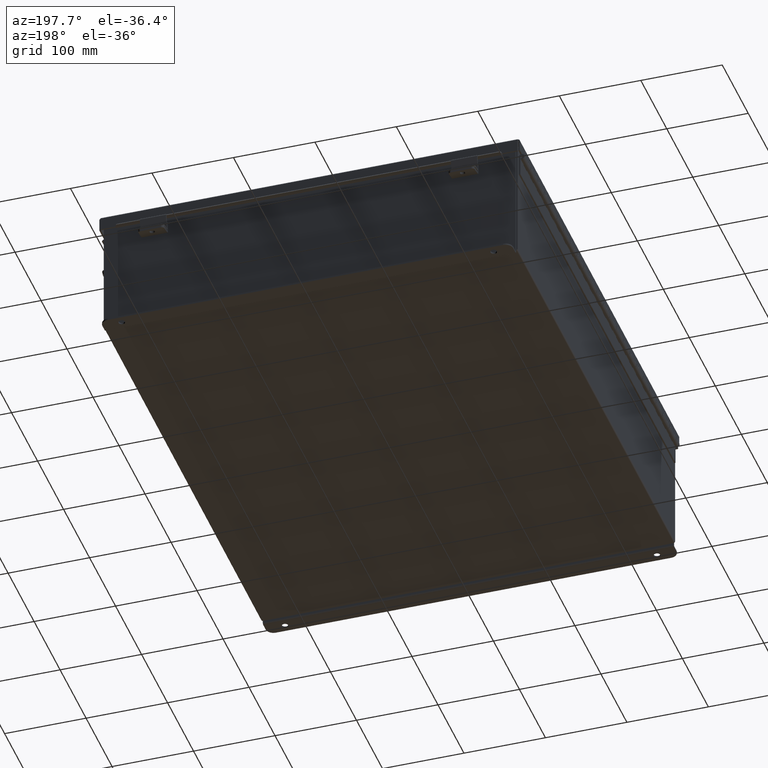
[diagram: clean part render]
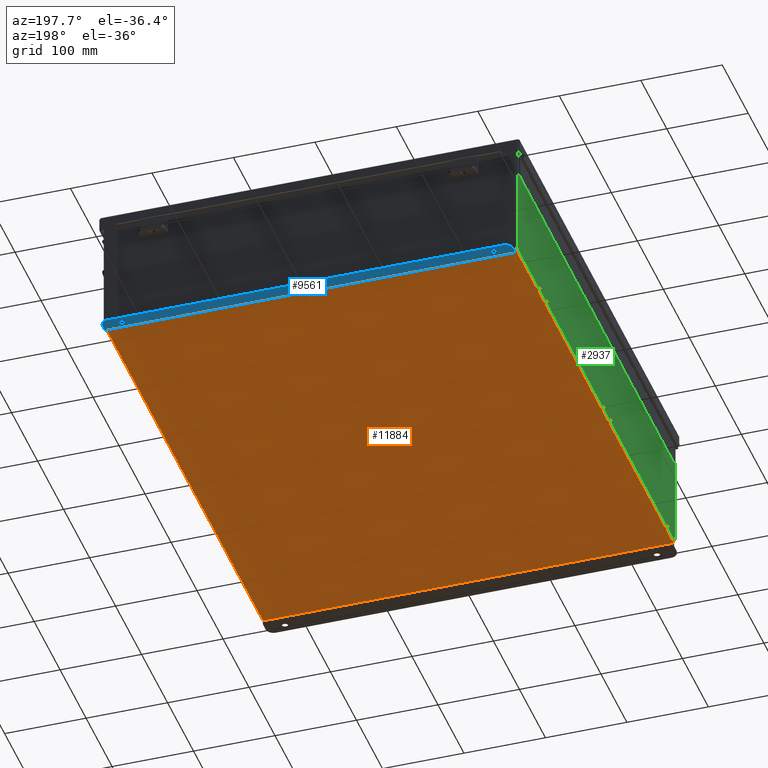
[diagram: same view with three faces highlighted in distinct colors, each labeled with its STEP entity id]
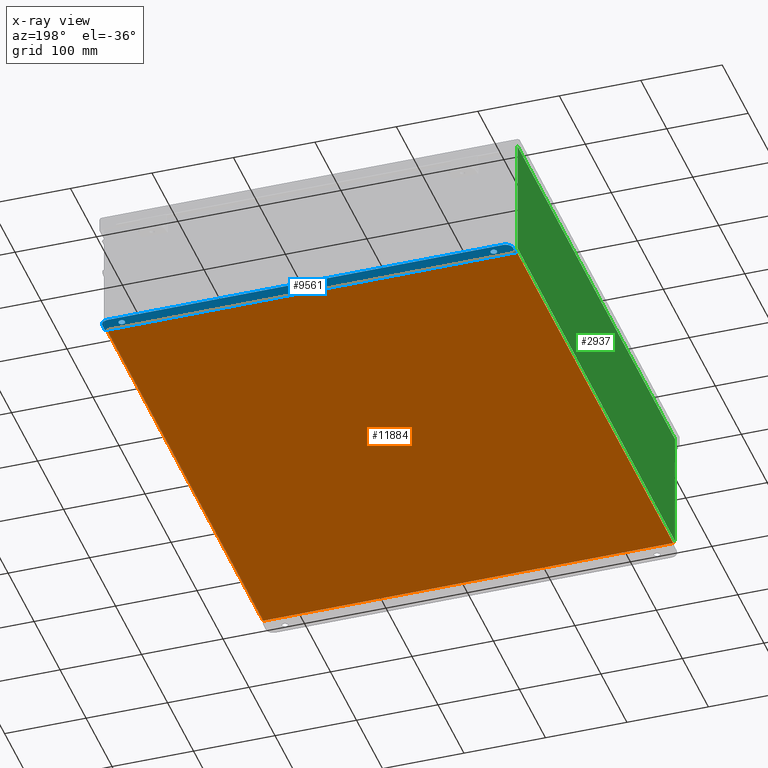
[diagram: x-ray of the same camera — body ghosted, the three highlighted faces saturated]
A machine part, auxiliary view with three faces highlighted in distinct colors.
The next image is the same camera in x-ray (body ghosted, the three faces saturated) — at least one of them is partly hidden behind the body in this view.
Their STEP definitions:

[orange] entity #11884 — the highlighted planar face has unit normal (0, 0, -1).
#275 = VERTEX_POINT ( 'NONE', #11798 ) ;
#281 = DIRECTION ( 'NONE',  ( -1.000000000000000000, -0.0000000000000000000, -0.0000000000000000000 ) ) ;
#1199 = VECTOR ( 'NONE', #281, 39.37007874015748100 ) ;
#1292 = CARTESIAN_POINT ( 'NONE',  ( -9.912300000000000100, 11.92529999999999600, -0.07470000000000000300 ) ) ;
#1330 = EDGE_CURVE ( 'NONE', #275, #4241, #13236, .T. ) ;
#1869 = ORIENTED_EDGE ( 'NONE', *, *, #11263, .F. ) ;
#2127 = PLANE ( 'NONE',  #12648 ) ;
#2163 = LINE ( 'NONE', #20819, #16376 ) ;
#4001 = DIRECTION ( 'NONE',  ( -0.0000000000000000000, 1.000000000000000000, -0.0000000000000000000 ) ) ;
#4145 = DIRECTION ( 'NONE',  ( 1.000000000000000000, 0.0000000000000000000, 0.0000000000000000000 ) ) ;
#4241 = VERTEX_POINT ( 'NONE', #20569 ) ;
#4636 = VERTEX_POINT ( 'NONE', #1292 ) ;
#5103 = EDGE_LOOP ( 'NONE', ( #1869, #19005, #13098, #18192 ) ) ;
#5761 = CARTESIAN_POINT ( 'NONE',  ( -10.00000000000000000, 11.92529999999999600, -0.07470000000000000300 ) ) ;
#6741 = VERTEX_POINT ( 'NONE', #15581 ) ;
#7726 = CARTESIAN_POINT ( 'NONE',  ( 0.0000000000000000000, 0.0000000000000000000, -0.07470000000000000300 ) ) ;
#8310 = VECTOR ( 'NONE', #13901, 39.37007874015748100 ) ;
#9303 = VECTOR ( 'NONE', #4001, 39.37007874015748100 ) ;
#9605 = DIRECTION ( 'NONE',  ( -1.000000000000000000, 0.0000000000000000000, -0.0000000000000000000 ) ) ;
#11072 = LINE ( 'NONE', #5761, #1199 ) ;
#11263 = EDGE_CURVE ( 'NONE', #275, #4636, #11072, .T. ) ;
#11798 = CARTESIAN_POINT ( 'NONE',  ( 9.912300000000000100, 11.92529999999999300, -0.07469999999999994700 ) ) ;
#11884 = ADVANCED_FACE ( 'NONE', ( #22962 ), #2127, .T. ) ;
#12648 = AXIS2_PLACEMENT_3D ( 'NONE', #7726, #20708, #9605 ) ;
#13018 = EDGE_CURVE ( 'NONE', #6741, #4636, #14807, .T. ) ;
#13098 = ORIENTED_EDGE ( 'NONE', *, *, #16505, .F. ) ;
#13236 = LINE ( 'NONE', #13981, #8310 ) ;
#13901 = DIRECTION ( 'NONE',  ( -0.0000000000000000000, -1.000000000000000000, -0.0000000000000000000 ) ) ;
#13981 = CARTESIAN_POINT ( 'NONE',  ( 9.912300000000000100, 11.92529999999999600, -0.07469999999999994700 ) ) ;
#14807 = LINE ( 'NONE', #16993, #9303 ) ;
#15581 = CARTESIAN_POINT ( 'NONE',  ( -9.912300000000000100, -11.92529999999999600, -0.07469999999999994700 ) ) ;
#16376 = VECTOR ( 'NONE', #4145, 39.37007874015748100 ) ;
#16505 = EDGE_CURVE ( 'NONE', #6741, #4241, #2163, .T. ) ;
#16993 = CARTESIAN_POINT ( 'NONE',  ( -9.912300000000000100, -11.92530000000000000, -0.07469999999999994700 ) ) ;
#18192 = ORIENTED_EDGE ( 'NONE', *, *, #13018, .T. ) ;
#19005 = ORIENTED_EDGE ( 'NONE', *, *, #1330, .T. ) ;
#20569 = CARTESIAN_POINT ( 'NONE',  ( 9.912300000000000100, -11.92530000000000000, -0.07470000000000000300 ) ) ;
#20708 = DIRECTION ( 'NONE',  ( 0.0000000000000000000, 0.0000000000000000000, -1.000000000000000000 ) ) ;
#20819 = CARTESIAN_POINT ( 'NONE',  ( -10.00000000000000000, -11.92530000000000000, -0.07470000000000000300 ) ) ;
#22962 = FACE_OUTER_BOUND ( 'NONE', #5103, .T. ) ;

[blue] entity #9561 — the highlighted planar face has unit normal (0, 0, 1).
#145 = CARTESIAN_POINT ( 'NONE',  ( -9.925299999999998200, -1.109230584341476100E-014, -3.187000000000000300 ) ) ;
#230 = VECTOR ( 'NONE', #23529, 39.37007874015748100 ) ;
#725 = ORIENTED_EDGE ( 'NONE', *, *, #15223, .T. ) ;
#883 = CARTESIAN_POINT ( 'NONE',  ( 8.987800000000001800, 0.3627999999999999000, -3.187000000000001200 ) ) ;
#1349 = VERTEX_POINT ( 'NONE', #13416 ) ;
#1623 = EDGE_CURVE ( 'NONE', #22430, #8117, #8599, .T. ) ;
#2121 = CARTESIAN_POINT ( 'NONE',  ( -9.925299999999996500, 0.01300000000000062700, -3.187000000000000300 ) ) ;
#2258 = CARTESIAN_POINT ( 'NONE',  ( 0.0000000000000000000, -1.109230584341476100E-014, -3.187000000000000300 ) ) ;
#2392 = AXIS2_PLACEMENT_3D ( 'NONE', #20904, #9798, #22767 ) ;
#2546 = EDGE_LOOP ( 'NONE', ( #17642, #4645, #20966, #16257, #7959, #725 ) ) ;
#2754 = DIRECTION ( 'NONE',  ( 0.0000000000000000000, 1.000000000000000000, -3.502369222646487000E-015 ) ) ;
#3453 = AXIS2_PLACEMENT_3D ( 'NONE', #10382, #23368, #12215 ) ;
#3705 = EDGE_CURVE ( 'NONE', #10535, #23243, #5157, .T. ) ;
#4428 = LINE ( 'NONE', #18434, #13718 ) ;
#4645 = ORIENTED_EDGE ( 'NONE', *, *, #15714, .T. ) ;
#4907 = EDGE_CURVE ( 'NONE', #7901, #1349, #15832, .T. ) ;
#5157 = LINE ( 'NONE', #17907, #230 ) ;
#5408 = CIRCLE ( 'NONE', #3453, 0.1560000000000001900 ) ;
#5541 = CARTESIAN_POINT ( 'NONE',  ( 9.925300000000001800, 0.3627999999999999600, -3.187000000000001200 ) ) ;
#5554 = CIRCLE ( 'NONE', #2392, 0.1560000000000001900 ) ;
#5765 = DIRECTION ( 'NONE',  ( 0.0000000000000000000, 1.000000000000000000, -3.702694488566362300E-015 ) ) ;
#5984 = DIRECTION ( 'NONE',  ( 0.0000000000000000000, 3.702694488566362300E-015, 1.000000000000000000 ) ) ;
#6036 = EDGE_LOOP ( 'NONE', ( #16778, #21455 ) ) ;
#6088 = AXIS2_PLACEMENT_3D ( 'NONE', #2258, #5984, #18967 ) ;
#7213 = CARTESIAN_POINT ( 'NONE',  ( 9.550300000000001800, 0.3627999999999999600, -3.187000000000001200 ) ) ;
#7308 = ORIENTED_EDGE ( 'NONE', *, *, #11322, .F. ) ;
#7625 = DIRECTION ( 'NONE',  ( 0.0000000000000000000, 1.000000000000000000, -3.502369222646487000E-015 ) ) ;
#7634 = DIRECTION ( 'NONE',  ( -0.0000000000000000000, -3.702694488566362300E-015, -1.000000000000000000 ) ) ;
#7652 = DIRECTION ( 'NONE',  ( 0.0000000000000000000, -3.702694488566362300E-015, -1.000000000000000000 ) ) ;
#7685 = CARTESIAN_POINT ( 'NONE',  ( 8.987800000000001800, 0.3627999999999999000, -3.187000000000001200 ) ) ;
#7814 = CARTESIAN_POINT ( 'NONE',  ( -9.550299999999998200, 0.7378000000000000100, -3.187000000000002900 ) ) ;
#7901 = VERTEX_POINT ( 'NONE', #2121 ) ;
#7959 = ORIENTED_EDGE ( 'NONE', *, *, #4907, .T. ) ;
#8013 = CARTESIAN_POINT ( 'NONE',  ( -8.987799999999994700, 0.5188000000000000400, -3.187000000000001600 ) ) ;
#8117 = VERTEX_POINT ( 'NONE', #19478 ) ;
#8599 = CIRCLE ( 'NONE', #9109, 0.1560000000000001900 ) ;
#8870 = AXIS2_PLACEMENT_3D ( 'NONE', #883, #13869, #2754 ) ;
#9086 = DIRECTION ( 'NONE',  ( 0.0000000000000000000, -1.000000000000000000, 4.370956789862820400E-015 ) ) ;
#9109 = AXIS2_PLACEMENT_3D ( 'NONE', #7685, #7652, #7625 ) ;
#9404 = FACE_OUTER_BOUND ( 'NONE', #2546, .T. ) ;
#9486 = VECTOR ( 'NONE', #19394, 39.37007874015748100 ) ;
#9561 = ADVANCED_FACE ( 'NONE', ( #23636, #18676, #9404 ), #15221, .F. ) ;
#9798 = DIRECTION ( 'NONE',  ( 0.0000000000000000000, -3.702694488566362300E-015, -1.000000000000000000 ) ) ;
#10347 = VECTOR ( 'NONE', #5765, 39.37007874015748100 ) ;
#10382 = CARTESIAN_POINT ( 'NONE',  ( -8.987799999999994700, 0.3627999999999999000, -3.187000000000001200 ) ) ;
#10535 = VERTEX_POINT ( 'NONE', #5541 ) ;
#11322 = EDGE_CURVE ( 'NONE', #15268, #14114, #5554, .T. ) ;
#11760 = CIRCLE ( 'NONE', #19888, 0.3750000000000000600 ) ;
#12215 = DIRECTION ( 'NONE',  ( 0.0000000000000000000, 1.000000000000000000, -3.502369222646487000E-015 ) ) ;
#13416 = CARTESIAN_POINT ( 'NONE',  ( -9.925299999999998200, 0.3628000000000000100, -3.187000000000001200 ) ) ;
#13675 = VERTEX_POINT ( 'NONE', #7814 ) ;
#13718 = VECTOR ( 'NONE', #20316, 39.37007874015748100 ) ;
#13757 = ORIENTED_EDGE ( 'NONE', *, *, #19501, .F. ) ;
#13869 = DIRECTION ( 'NONE',  ( 0.0000000000000000000, -3.702694488566362300E-015, -1.000000000000000000 ) ) ;
#14114 = VERTEX_POINT ( 'NONE', #8013 ) ;
#14347 = CARTESIAN_POINT ( 'NONE',  ( 8.987800000000001800, 0.5188000000000000400, -3.187000000000001600 ) ) ;
#14396 = LINE ( 'NONE', #17511, #9486 ) ;
#15221 = PLANE ( 'NONE',  #6088 ) ;
#15223 = EDGE_CURVE ( 'NONE', #1349, #13675, #17904, .T. ) ;
#15268 = VERTEX_POINT ( 'NONE', #22593 ) ;
#15681 = CARTESIAN_POINT ( 'NONE',  ( 9.550300000000001800, 0.7378000000000000100, -3.187000000000002900 ) ) ;
#15714 = EDGE_CURVE ( 'NONE', #18128, #10535, #11760, .T. ) ;
#15832 = LINE ( 'NONE', #145, #10347 ) ;
#16257 = ORIENTED_EDGE ( 'NONE', *, *, #21972, .F. ) ;
#16778 = ORIENTED_EDGE ( 'NONE', *, *, #1623, .F. ) ;
#16893 = EDGE_CURVE ( 'NONE', #8117, #22430, #23650, .T. ) ;
#17511 = CARTESIAN_POINT ( 'NONE',  ( 0.0000000000000000000, 0.7378000000000000100, -3.187000000000002900 ) ) ;
#17642 = ORIENTED_EDGE ( 'NONE', *, *, #20503, .T. ) ;
#17904 = CIRCLE ( 'NONE', #20814, 0.3750000000000000600 ) ;
#17907 = CARTESIAN_POINT ( 'NONE',  ( 9.925300000000001800, -1.109230584341476100E-014, -3.187000000000000300 ) ) ;
#18128 = VERTEX_POINT ( 'NONE', #15681 ) ;
#18434 = CARTESIAN_POINT ( 'NONE',  ( 9.925300000000001800, 0.01300000000000062700, -3.187000000000000300 ) ) ;
#18676 = FACE_BOUND ( 'NONE', #6036, .T. ) ;
#18753 = CARTESIAN_POINT ( 'NONE',  ( -9.550299999999998200, 0.3628000000000000100, -3.187000000000001200 ) ) ;
#18840 = CARTESIAN_POINT ( 'NONE',  ( 9.925300000000001800, 0.01299999999999968500, -3.187000000000000300 ) ) ;
#18967 = DIRECTION ( 'NONE',  ( 0.0000000000000000000, -1.000000000000000000, 3.702694488566362300E-015 ) ) ;
#19394 = DIRECTION ( 'NONE',  ( 1.000000000000000000, 0.0000000000000000000, -0.0000000000000000000 ) ) ;
#19478 = CARTESIAN_POINT ( 'NONE',  ( 8.987800000000001800, 0.2067999999999997300, -3.187000000000000700 ) ) ;
#19501 = EDGE_CURVE ( 'NONE', #14114, #15268, #5408, .T. ) ;
#19888 = AXIS2_PLACEMENT_3D ( 'NONE', #7213, #20200, #9086 ) ;
#20200 = DIRECTION ( 'NONE',  ( -0.0000000000000000000, -3.702694488566362300E-015, -1.000000000000000000 ) ) ;
#20316 = DIRECTION ( 'NONE',  ( 1.000000000000000000, -0.0000000000000000000, -0.0000000000000000000 ) ) ;
#20503 = EDGE_CURVE ( 'NONE', #13675, #18128, #14396, .T. ) ;
#20633 = DIRECTION ( 'NONE',  ( 0.0000000000000000000, -1.000000000000000000, 4.370956789862820400E-015 ) ) ;
#20814 = AXIS2_PLACEMENT_3D ( 'NONE', #18753, #7634, #20633 ) ;
#20904 = CARTESIAN_POINT ( 'NONE',  ( -8.987799999999994700, 0.3627999999999999000, -3.187000000000001200 ) ) ;
#20966 = ORIENTED_EDGE ( 'NONE', *, *, #3705, .T. ) ;
#21455 = ORIENTED_EDGE ( 'NONE', *, *, #16893, .F. ) ;
#21972 = EDGE_CURVE ( 'NONE', #7901, #23243, #4428, .T. ) ;
#22430 = VERTEX_POINT ( 'NONE', #14347 ) ;
#22593 = CARTESIAN_POINT ( 'NONE',  ( -8.987799999999994700, 0.2067999999999997300, -3.187000000000000700 ) ) ;
#22767 = DIRECTION ( 'NONE',  ( 0.0000000000000000000, 1.000000000000000000, -3.502369222646487000E-015 ) ) ;
#23243 = VERTEX_POINT ( 'NONE', #18840 ) ;
#23368 = DIRECTION ( 'NONE',  ( 0.0000000000000000000, -3.702694488566362300E-015, -1.000000000000000000 ) ) ;
#23529 = DIRECTION ( 'NONE',  ( 0.0000000000000000000, -1.000000000000000000, 3.702694488566362300E-015 ) ) ;
#23558 = EDGE_LOOP ( 'NONE', ( #13757, #7308 ) ) ;
#23636 = FACE_BOUND ( 'NONE', #23558, .T. ) ;
#23650 = CIRCLE ( 'NONE', #8870, 0.1560000000000001900 ) ;

[green] entity #2937 — the highlighted planar face has unit normal (1, 0, 0).
#35 = VECTOR ( 'NONE', #11789, 39.37007874015748100 ) ;
#338 = EDGE_CURVE ( 'NONE', #5795, #22057, #4820, .T. ) ;
#781 = EDGE_CURVE ( 'NONE', #5443, #5795, #9193, .T. ) ;
#2937 = ADVANCED_FACE ( 'NONE', ( #14021 ), #13613, .F. ) ;
#3051 = AXIS2_PLACEMENT_3D ( 'NONE', #21110, #9985, #22975 ) ;
#3147 = VERTEX_POINT ( 'NONE', #4923 ) ;
#3464 = CARTESIAN_POINT ( 'NONE',  ( -10.00000000000002000, 11.92529999999999600, 5.837599999999999200 ) ) ;
#4743 = DIRECTION ( 'NONE',  ( 3.361929640444176300E-015, 0.0000000000000000000, -1.000000000000000000 ) ) ;
#4820 = LINE ( 'NONE', #11094, #13524 ) ;
#4923 = CARTESIAN_POINT ( 'NONE',  ( -10.00000000000000000, -11.92529999999999600, 0.01299999999999986400 ) ) ;
#5443 = VERTEX_POINT ( 'NONE', #9658 ) ;
#5795 = VERTEX_POINT ( 'NONE', #3464 ) ;
#5956 = VECTOR ( 'NONE', #15701, 39.37007874015748100 ) ;
#6151 = ORIENTED_EDGE ( 'NONE', *, *, #338, .T. ) ;
#6728 = DIRECTION ( 'NONE',  ( 0.0000000000000000000, 1.000000000000000000, 0.0000000000000000000 ) ) ;
#8523 = EDGE_LOOP ( 'NONE', ( #22874, #6151, #15857, #15004 ) ) ;
#9193 = LINE ( 'NONE', #11408, #23425 ) ;
#9658 = CARTESIAN_POINT ( 'NONE',  ( -10.00000000000002000, -11.92529999999999500, 5.837599999999999200 ) ) ;
#9985 = DIRECTION ( 'NONE',  ( 1.000000000000000000, 0.0000000000000000000, 3.361929640444175900E-015 ) ) ;
#11094 = CARTESIAN_POINT ( 'NONE',  ( -10.00000000000000000, 11.92529999999999600, -3.388011006045334200E-014 ) ) ;
#11215 = CARTESIAN_POINT ( 'NONE',  ( -10.00000000000000000, 11.92529999999999600, 0.01299999999999985500 ) ) ;
#11390 = EDGE_CURVE ( 'NONE', #3147, #22057, #23579, .T. ) ;
#11408 = CARTESIAN_POINT ( 'NONE',  ( -10.00000000000002000, -11.92529999999999600, 5.837599999999999200 ) ) ;
#11789 = DIRECTION ( 'NONE',  ( -0.0000000000000000000, 1.000000000000000000, -0.0000000000000000000 ) ) ;
#13524 = VECTOR ( 'NONE', #4743, 39.37007874015748100 ) ;
#13613 = PLANE ( 'NONE',  #3051 ) ;
#14021 = FACE_OUTER_BOUND ( 'NONE', #8523, .T. ) ;
#15004 = ORIENTED_EDGE ( 'NONE', *, *, #15969, .T. ) ;
#15701 = DIRECTION ( 'NONE',  ( -3.361929640444176300E-015, 3.735477378271307500E-016, 1.000000000000000000 ) ) ;
#15801 = LINE ( 'NONE', #19379, #5956 ) ;
#15857 = ORIENTED_EDGE ( 'NONE', *, *, #11390, .F. ) ;
#15969 = EDGE_CURVE ( 'NONE', #3147, #5443, #15801, .T. ) ;
#19186 = CARTESIAN_POINT ( 'NONE',  ( -10.00000000000000000, 11.92529999999999600, 0.01299999999999986400 ) ) ;
#19379 = CARTESIAN_POINT ( 'NONE',  ( -10.00000000000000000, -11.92530000000000000, -2.942544122254345600E-014 ) ) ;
#21110 = CARTESIAN_POINT ( 'NONE',  ( -10.00000000000000000, 0.0000000000000000000, -3.388011006045334200E-014 ) ) ;
#22057 = VERTEX_POINT ( 'NONE', #11215 ) ;
#22874 = ORIENTED_EDGE ( 'NONE', *, *, #781, .T. ) ;
#22975 = DIRECTION ( 'NONE',  ( 3.361929640444175900E-015, 0.0000000000000000000, -1.000000000000000000 ) ) ;
#23425 = VECTOR ( 'NONE', #6728, 39.37007874015748100 ) ;
#23579 = LINE ( 'NONE', #19186, #35 ) ;